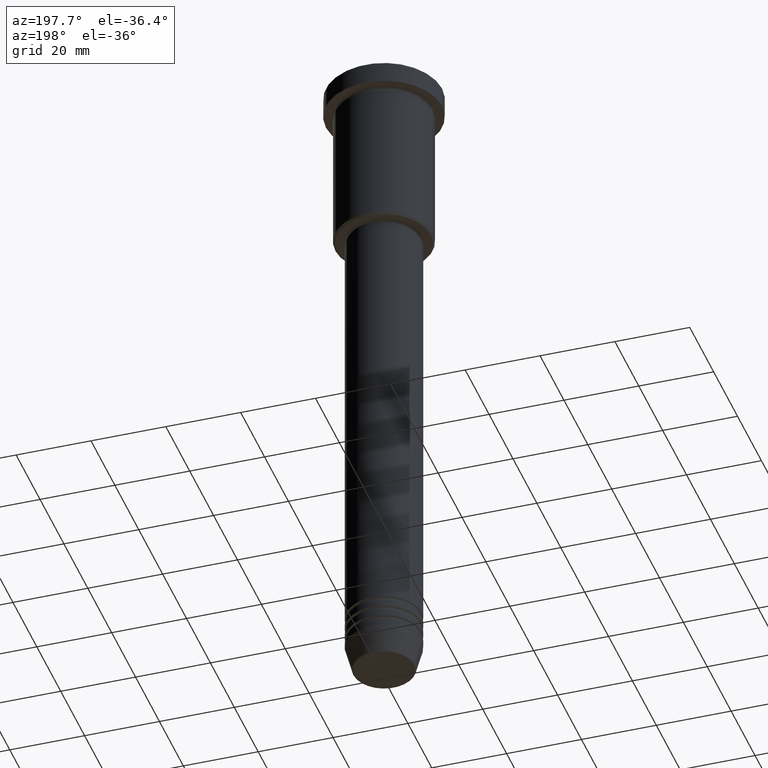
[diagram: clean part render]
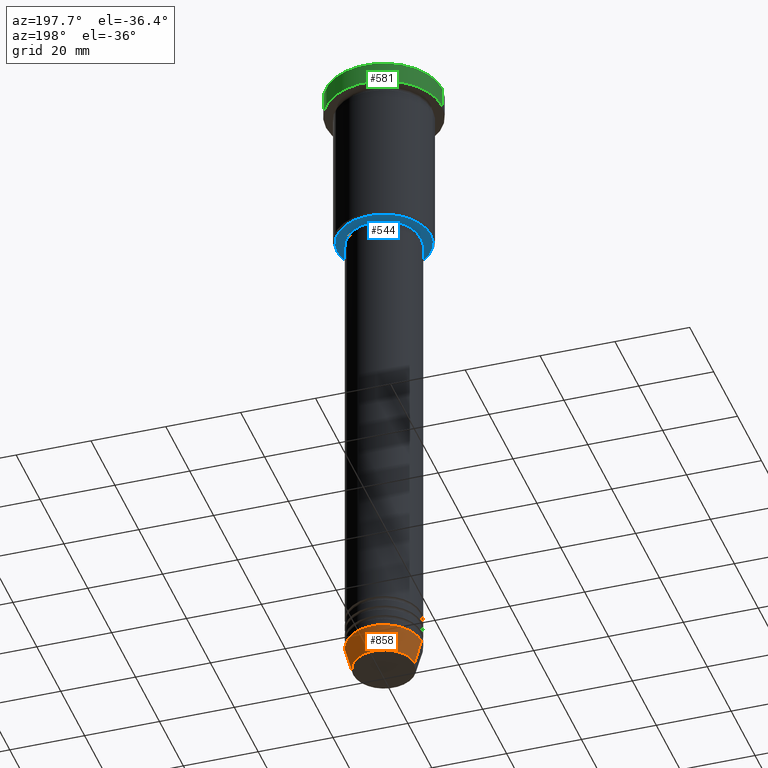
[diagram: same view with three faces highlighted in distinct colors, each labeled with its STEP entity id]
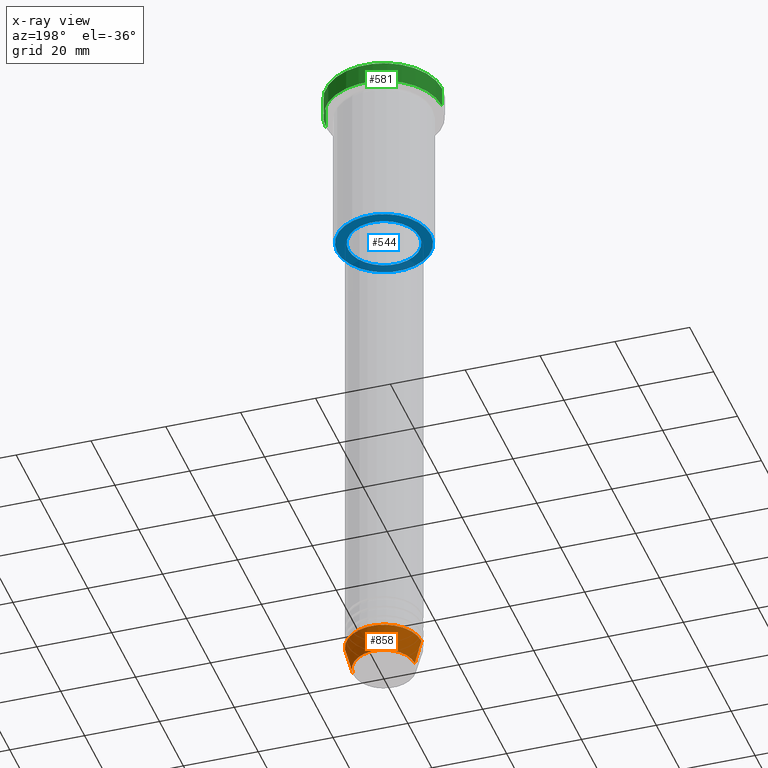
[diagram: x-ray of the same camera — body ghosted, the three highlighted faces saturated]
A machine part, auxiliary view with three faces highlighted in distinct colors.
The next image is the same camera in x-ray (body ghosted, the three faces saturated) — at least one of them is partly hidden behind the body in this view.
Their STEP definitions:

[orange] entity #858 — the highlighted conical surface has half-angle 15 deg.
#10 = EDGE_CURVE ( 'NONE', #142, #396, #426, .T. ) ;
#21 = DIRECTION ( 'NONE',  ( -0.2588190451025213501, 3.169619151431772337E-17, 0.9659258262890680902 ) ) ;
#35 = VECTOR ( 'NONE', #21, 1000.000000000000000 ) ;
#72 = EDGE_CURVE ( 'NONE', #396, #353, #553, .T. ) ;
#132 = ORIENTED_EDGE ( 'NONE', *, *, #704, .F. ) ;
#142 = VERTEX_POINT ( 'NONE', #1064 ) ;
#170 = CONICAL_SURFACE ( 'NONE', #763, 10.00000000000000000, 0.2617993877991500740 ) ;
#236 = DIRECTION ( 'NONE',  ( 1.000000000000000000, 0.000000000000000000, 0.000000000000000000 ) ) ;
#268 = DIRECTION ( 'NONE',  ( 1.000000000000000000, 0.000000000000000000, 0.000000000000000000 ) ) ;
#282 = CARTESIAN_POINT ( 'NONE',  ( 10.00000000000000000, 0.000000000000000000, -174.0000000000000284 ) ) ;
#353 = VERTEX_POINT ( 'NONE', #477 ) ;
#364 = CARTESIAN_POINT ( 'NONE',  ( 0.000000000000000000, 0.000000000000000000, -180.6294095225512422 ) ) ;
#380 = CARTESIAN_POINT ( 'NONE',  ( -10.00000000000000000, 1.224646799147353256E-15, -174.0000000000000284 ) ) ;
#396 = VERTEX_POINT ( 'NONE', #825 ) ;
#422 = CARTESIAN_POINT ( 'NONE',  ( 0.000000000000000000, 0.000000000000000000, -174.0000000000000284 ) ) ;
#426 = CIRCLE ( 'NONE', #678, 8.223655072137198374 ) ;
#460 = VERTEX_POINT ( 'NONE', #282 ) ;
#477 = CARTESIAN_POINT ( 'NONE',  ( -10.00000000000000000, 1.224646799147353256E-15, -174.0000000000000284 ) ) ;
#553 = LINE ( 'NONE', #380, #35 ) ;
#559 = ORIENTED_EDGE ( 'NONE', *, *, #1035, .F. ) ;
#610 = CARTESIAN_POINT ( 'NONE',  ( 0.000000000000000000, 0.000000000000000000, -174.0000000000000284 ) ) ;
#617 = DIRECTION ( 'NONE',  ( -0.000000000000000000, -0.000000000000000000, 1.000000000000000000 ) ) ;
#633 = DIRECTION ( 'NONE',  ( 1.000000000000000000, 0.000000000000000000, 0.000000000000000000 ) ) ;
#678 = AXIS2_PLACEMENT_3D ( 'NONE', #364, #834, #268 ) ;
#686 = FACE_OUTER_BOUND ( 'NONE', #690, .T. ) ;
#690 = EDGE_LOOP ( 'NONE', ( #985, #871, #559, #132 ) ) ;
#704 = EDGE_CURVE ( 'NONE', #142, #460, #1147, .T. ) ;
#711 = CARTESIAN_POINT ( 'NONE',  ( 10.00000000000000000, 0.000000000000000000, -174.0000000000000284 ) ) ;
#717 = DIRECTION ( 'NONE',  ( -0.000000000000000000, -0.000000000000000000, 1.000000000000000000 ) ) ;
#763 = AXIS2_PLACEMENT_3D ( 'NONE', #422, #617, #236 ) ;
#802 = CIRCLE ( 'NONE', #955, 10.00000000000000000 ) ;
#825 = CARTESIAN_POINT ( 'NONE',  ( -8.223655072137198374, 1.115877042642912448E-15, -180.6294095225512422 ) ) ;
#834 = DIRECTION ( 'NONE',  ( -0.000000000000000000, -0.000000000000000000, 1.000000000000000000 ) ) ;
#858 = ADVANCED_FACE ( 'NONE', ( #686 ), #170, .T. ) ;
#871 = ORIENTED_EDGE ( 'NONE', *, *, #72, .T. ) ;
#955 = AXIS2_PLACEMENT_3D ( 'NONE', #610, #717, #633 ) ;
#985 = ORIENTED_EDGE ( 'NONE', *, *, #10, .T. ) ;
#995 = DIRECTION ( 'NONE',  ( 0.2588190451025213501, 0.000000000000000000, 0.9659258262890680902 ) ) ;
#1035 = EDGE_CURVE ( 'NONE', #460, #353, #802, .T. ) ;
#1043 = VECTOR ( 'NONE', #995, 1000.000000000000000 ) ;
#1064 = CARTESIAN_POINT ( 'NONE',  ( 8.223655072137198374, 0.000000000000000000, -180.6294095225512422 ) ) ;
#1147 = LINE ( 'NONE', #711, #1043 ) ;

[blue] entity #544 — the highlighted planar face has unit normal (0, 0, -1).
#19 = CARTESIAN_POINT ( 'NONE',  ( 0.000000000000000000, 0.000000000000000000, -46.00000000000000000 ) ) ;
#26 = DIRECTION ( 'NONE',  ( -1.000000000000000000, 0.000000000000000000, -0.000000000000000000 ) ) ;
#58 = CIRCLE ( 'NONE', #679, 12.50000000000002487 ) ;
#73 = CARTESIAN_POINT ( 'NONE',  ( 12.50000000000002487, 0.000000000000000000, -46.00000000000000000 ) ) ;
#88 = CARTESIAN_POINT ( 'NONE',  ( 0.000000000000000000, 13.00000000000000000, -46.00000000000000000 ) ) ;
#116 = DIRECTION ( 'NONE',  ( -1.000000000000000000, 0.000000000000000000, 0.000000000000000000 ) ) ;
#164 = FACE_OUTER_BOUND ( 'NONE', #981, .T. ) ;
#168 = EDGE_CURVE ( 'NONE', #377, #670, #983, .T. ) ;
#182 = VERTEX_POINT ( 'NONE', #883 ) ;
#188 = AXIS2_PLACEMENT_3D ( 'NONE', #88, #221, #26 ) ;
#221 = DIRECTION ( 'NONE',  ( 0.000000000000000000, 0.000000000000000000, -1.000000000000000000 ) ) ;
#255 = ORIENTED_EDGE ( 'NONE', *, *, #168, .T. ) ;
#349 = FACE_BOUND ( 'NONE', #419, .T. ) ;
#377 = VERTEX_POINT ( 'NONE', #434 ) ;
#419 = EDGE_LOOP ( 'NONE', ( #808, #255 ) ) ;
#434 = CARTESIAN_POINT ( 'NONE',  ( -9.500000000000000000, 1.163414459189985485E-15, -46.00000000000000000 ) ) ;
#457 = EDGE_CURVE ( 'NONE', #182, #573, #699, .T. ) ;
#499 = EDGE_CURVE ( 'NONE', #670, #377, #1151, .T. ) ;
#544 = ADVANCED_FACE ( 'NONE', ( #164, #349 ), #896, .T. ) ;
#562 = EDGE_CURVE ( 'NONE', #573, #182, #58, .T. ) ;
#563 = CARTESIAN_POINT ( 'NONE',  ( 0.000000000000000000, 0.000000000000000000, -46.00000000000000000 ) ) ;
#573 = VERTEX_POINT ( 'NONE', #73 ) ;
#606 = CARTESIAN_POINT ( 'NONE',  ( 0.000000000000000000, 0.000000000000000000, -46.00000000000000000 ) ) ;
#616 = DIRECTION ( 'NONE',  ( -0.000000000000000000, -0.000000000000000000, 1.000000000000000000 ) ) ;
#646 = AXIS2_PLACEMENT_3D ( 'NONE', #563, #1082, #116 ) ;
#664 = AXIS2_PLACEMENT_3D ( 'NONE', #1024, #859, #767 ) ;
#670 = VERTEX_POINT ( 'NONE', #901 ) ;
#679 = AXIS2_PLACEMENT_3D ( 'NONE', #19, #964, #972 ) ;
#699 = CIRCLE ( 'NONE', #646, 12.50000000000002487 ) ;
#735 = ORIENTED_EDGE ( 'NONE', *, *, #562, .T. ) ;
#767 = DIRECTION ( 'NONE',  ( 1.000000000000000000, 0.000000000000000000, 0.000000000000000000 ) ) ;
#790 = ORIENTED_EDGE ( 'NONE', *, *, #457, .T. ) ;
#799 = DIRECTION ( 'NONE',  ( 1.000000000000000000, 0.000000000000000000, 0.000000000000000000 ) ) ;
#808 = ORIENTED_EDGE ( 'NONE', *, *, #499, .T. ) ;
#859 = DIRECTION ( 'NONE',  ( -0.000000000000000000, -0.000000000000000000, 1.000000000000000000 ) ) ;
#883 = CARTESIAN_POINT ( 'NONE',  ( -12.50000000000002487, 1.561424668912876886E-15, -46.00000000000000000 ) ) ;
#896 = PLANE ( 'NONE',  #188 ) ;
#901 = CARTESIAN_POINT ( 'NONE',  ( 9.500000000000000000, 0.000000000000000000, -46.00000000000000000 ) ) ;
#935 = AXIS2_PLACEMENT_3D ( 'NONE', #606, #616, #799 ) ;
#964 = DIRECTION ( 'NONE',  ( 0.000000000000000000, 0.000000000000000000, -1.000000000000000000 ) ) ;
#972 = DIRECTION ( 'NONE',  ( -1.000000000000000000, 0.000000000000000000, 0.000000000000000000 ) ) ;
#981 = EDGE_LOOP ( 'NONE', ( #735, #790 ) ) ;
#983 = CIRCLE ( 'NONE', #935, 9.500000000000000000 ) ;
#1024 = CARTESIAN_POINT ( 'NONE',  ( 0.000000000000000000, 0.000000000000000000, -46.00000000000000000 ) ) ;
#1082 = DIRECTION ( 'NONE',  ( 0.000000000000000000, 0.000000000000000000, -1.000000000000000000 ) ) ;
#1151 = CIRCLE ( 'NONE', #664, 9.500000000000000000 ) ;

[green] entity #581 — the highlighted cylindrical surface (partial cylindrical patch) has radius 15.5 mm, axis along (-0, -0, 1).
#42 = ORIENTED_EDGE ( 'NONE', *, *, #225, .T. ) ;
#69 = DIRECTION ( 'NONE',  ( -0.000000000000000000, -0.000000000000000000, 1.000000000000000000 ) ) ;
#80 = VECTOR ( 'NONE', #1098, 1000.000000000000000 ) ;
#87 = ORIENTED_EDGE ( 'NONE', *, *, #341, .F. ) ;
#89 = DIRECTION ( 'NONE',  ( 1.000000000000000000, 0.000000000000000000, 0.000000000000000000 ) ) ;
#110 = DIRECTION ( 'NONE',  ( -0.000000000000000000, -0.000000000000000000, 1.000000000000000000 ) ) ;
#165 = DIRECTION ( 'NONE',  ( 0.000000000000000000, 0.000000000000000000, -1.000000000000000000 ) ) ;
#175 = FACE_OUTER_BOUND ( 'NONE', #402, .T. ) ;
#225 = EDGE_CURVE ( 'NONE', #342, #855, #1057, .T. ) ;
#262 = AXIS2_PLACEMENT_3D ( 'NONE', #515, #69, #420 ) ;
#264 = AXIS2_PLACEMENT_3D ( 'NONE', #535, #110, #915 ) ;
#286 = CARTESIAN_POINT ( 'NONE',  ( 15.50000000000000000, 0.000000000000000000, -5.999999999999995559 ) ) ;
#336 = ORIENTED_EDGE ( 'NONE', *, *, #363, .T. ) ;
#341 = EDGE_CURVE ( 'NONE', #342, #741, #1173, .T. ) ;
#342 = VERTEX_POINT ( 'NONE', #286 ) ;
#363 = EDGE_CURVE ( 'NONE', #644, #741, #405, .T. ) ;
#395 = CARTESIAN_POINT ( 'NONE',  ( -15.50000000000000000, 1.898202538678397557E-15, 0.000000000000000000 ) ) ;
#402 = EDGE_LOOP ( 'NONE', ( #42, #667, #336, #87 ) ) ;
#405 = CIRCLE ( 'NONE', #1029, 15.50000000000000000 ) ;
#420 = DIRECTION ( 'NONE',  ( 1.000000000000000000, 0.000000000000000000, 0.000000000000000000 ) ) ;
#515 = CARTESIAN_POINT ( 'NONE',  ( 0.000000000000000000, 0.000000000000000000, -5.999999999999995559 ) ) ;
#535 = CARTESIAN_POINT ( 'NONE',  ( 0.000000000000000000, 0.000000000000000000, 0.000000000000000000 ) ) ;
#581 = ADVANCED_FACE ( 'NONE', ( #175 ), #990, .T. ) ;
#623 = CARTESIAN_POINT ( 'NONE',  ( -15.50000000000000000, 1.898202538678397557E-15, -0.5000000000000125455 ) ) ;
#644 = VERTEX_POINT ( 'NONE', #623 ) ;
#660 = LINE ( 'NONE', #395, #1135 ) ;
#667 = ORIENTED_EDGE ( 'NONE', *, *, #1081, .T. ) ;
#741 = VERTEX_POINT ( 'NONE', #928 ) ;
#742 = CARTESIAN_POINT ( 'NONE',  ( 15.50000000000000000, 0.000000000000000000, 0.000000000000000000 ) ) ;
#855 = VERTEX_POINT ( 'NONE', #943 ) ;
#915 = DIRECTION ( 'NONE',  ( 1.000000000000000000, 0.000000000000000000, 0.000000000000000000 ) ) ;
#928 = CARTESIAN_POINT ( 'NONE',  ( 15.50000000000000000, 0.000000000000000000, -0.5000000000000125455 ) ) ;
#943 = CARTESIAN_POINT ( 'NONE',  ( -15.50000000000000000, 1.898202538678397557E-15, -5.999999999999995559 ) ) ;
#990 = CYLINDRICAL_SURFACE ( 'NONE', #264, 15.50000000000000000 ) ;
#1029 = AXIS2_PLACEMENT_3D ( 'NONE', #1154, #165, #89 ) ;
#1034 = DIRECTION ( 'NONE',  ( -0.000000000000000000, -0.000000000000000000, 1.000000000000000000 ) ) ;
#1057 = CIRCLE ( 'NONE', #262, 15.50000000000000000 ) ;
#1081 = EDGE_CURVE ( 'NONE', #855, #644, #660, .T. ) ;
#1098 = DIRECTION ( 'NONE',  ( -0.000000000000000000, -0.000000000000000000, 1.000000000000000000 ) ) ;
#1135 = VECTOR ( 'NONE', #1034, 1000.000000000000000 ) ;
#1154 = CARTESIAN_POINT ( 'NONE',  ( 0.000000000000000000, 0.000000000000000000, -0.5000000000000125455 ) ) ;
#1173 = LINE ( 'NONE', #742, #80 ) ;